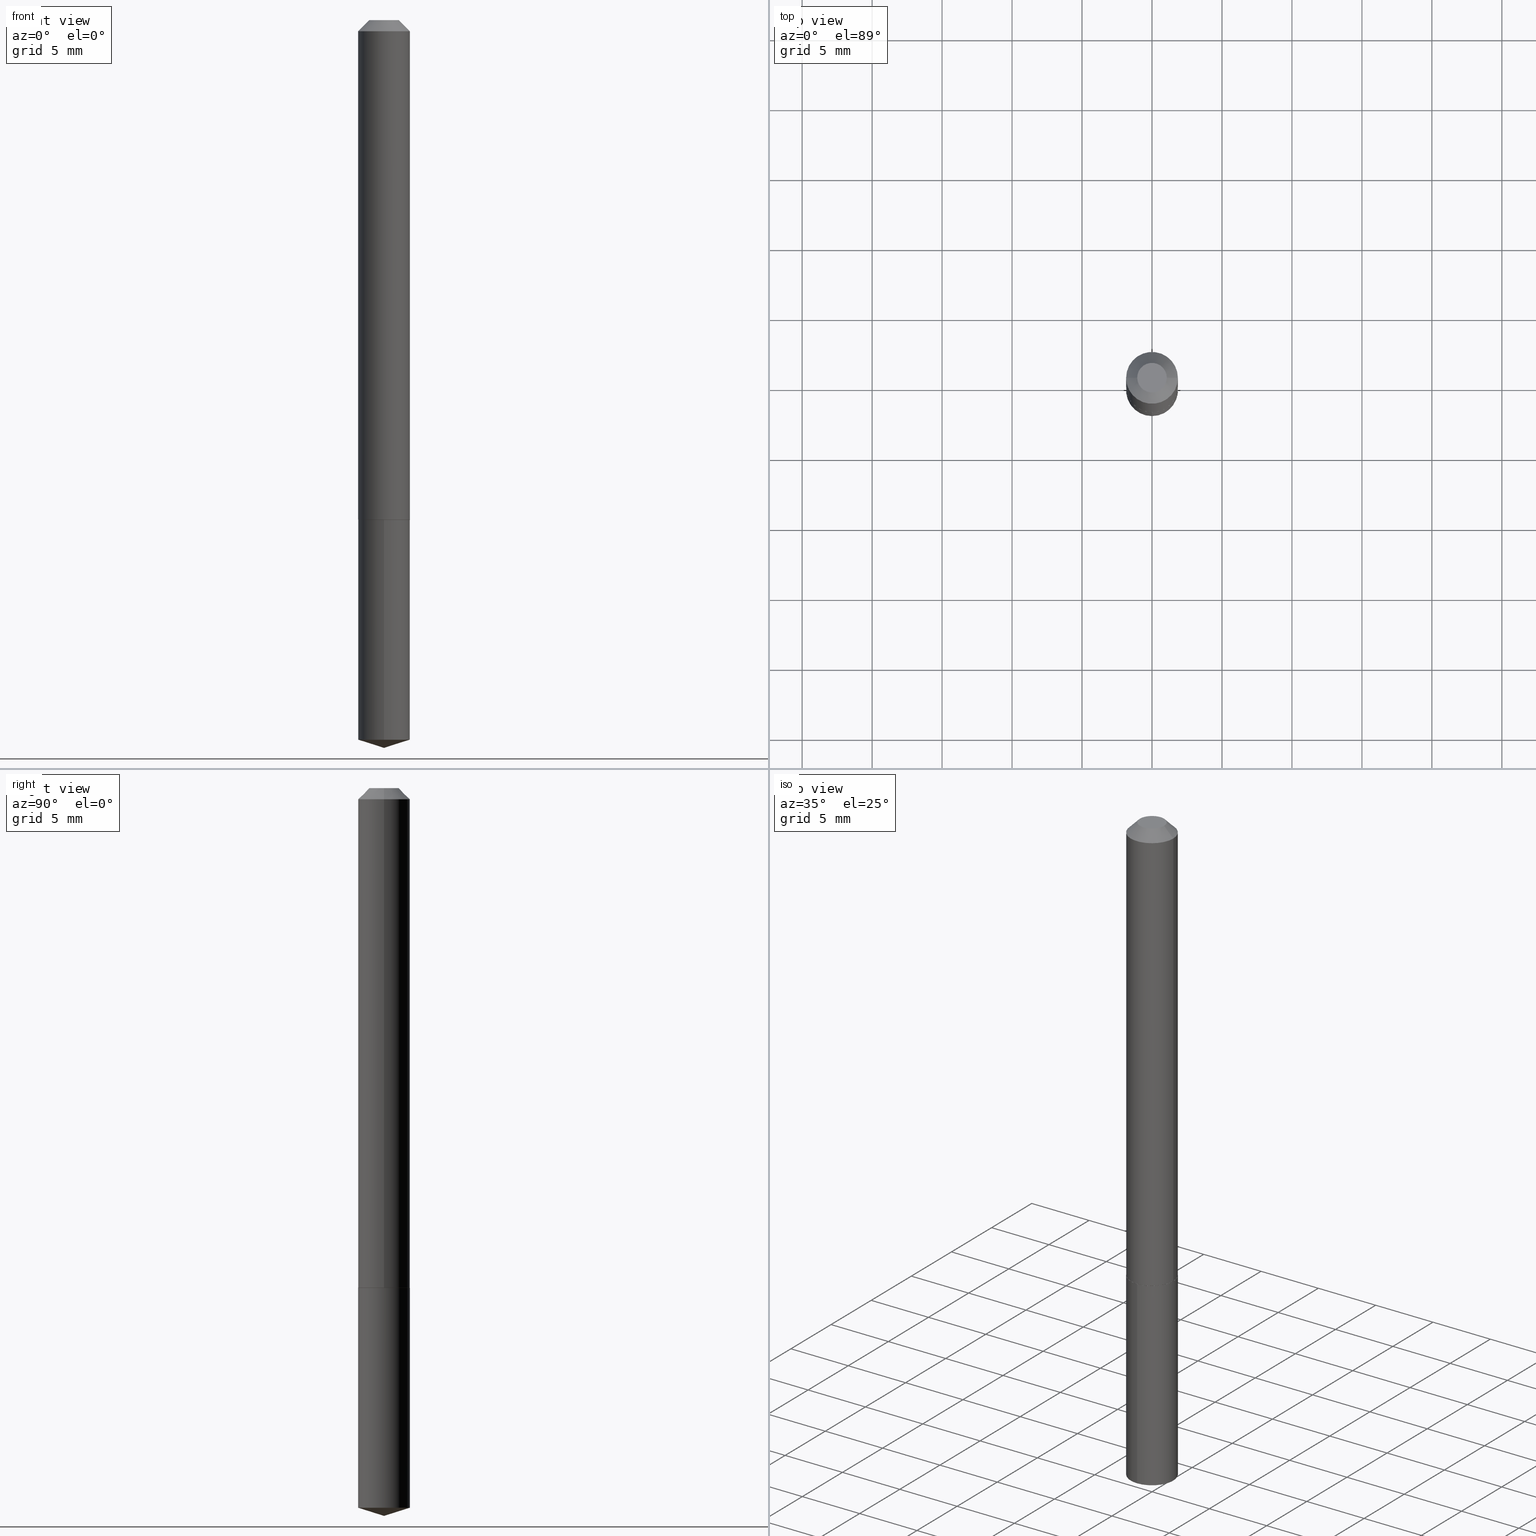
[diagram: canonical four-view strip — front | top / right | iso, engineering-drawing reading convention]
A machine part, canonical four-view strip (front | top / right | iso — engineering-drawing reading convention). The complete STEP part file that produces these views, byte-faithful:
ISO-10303-21;
HEADER;
FILE_DESCRIPTION (( 'STEP AP203' ),
    '1' );
FILE_NAME ('62085.STEP',
    '2024-04-23T05:44:07',
    ( '' ),
    ( '' ),
    'SwSTEP 2.0',
    'SolidWorks 2023',
    '' );
FILE_SCHEMA (( 'CONFIG_CONTROL_DESIGN' ));
ENDSEC;

DATA;
#1 = DIRECTION ( 'NONE',  ( -0.7071067811865453523, 2.468850131082234184E-15, -0.7071067811865496822 ) ) ;
#2 = CARTESIAN_POINT ( 'NONE',  ( -0.07284999999999999809, -1.989689653455501320E-15, -0.03125000000000020123 ) ) ;
#3 = ADVANCED_FACE ( 'NONE', ( #125 ), #66, .T. ) ;
#4 = DIRECTION ( 'NONE',  ( -2.436295008102634133E-29, 3.504618739837450053E-15, 1.000000000000000000 ) ) ;
#5 = DIRECTION ( 'NONE',  ( -2.436295008102633853E-29, 3.504618739837450053E-15, 1.000000000000000000 ) ) ;
#6 = CYLINDRICAL_SURFACE ( 'NONE', #93, 0.07284999999999999809 ) ;
#7 = DIRECTION ( 'NONE',  ( 1.000000000000000000, -6.982962677686261977E-15, 0.000000000000000000 ) ) ;
#8 = CARTESIAN_POINT ( 'NONE',  ( -0.07284999999999999809, 3.996000392305954789E-16, -0.03125000000000020123 ) ) ;
#9 = AXIS2_PLACEMENT_3D ( 'NONE', #320, #237, #55 ) ;
#10 = APPLICATION_PROTOCOL_DEFINITION ( 'international standard', 'config_control_design', 1994, #74 ) ;
#11 = CALENDAR_DATE ( 2024, 23, 4 ) ;
#12 = APPROVAL ( #279, 'UNSPECIFIED' ) ;
#13 = DIRECTION ( 'NONE',  ( 0.7071067811865453523, -7.319954787623248157E-15, -0.7071067811865496822 ) ) ;
#14 = PERSON_AND_ORGANIZATION_ROLE ( 'design_supplier' ) ;
#15 = AXIS2_PLACEMENT_3D ( 'NONE', #323, #89, #270 ) ;
#16 = AXIS2_PLACEMENT_3D ( 'NONE', #259, #233, #331 ) ;
#17 =( NAMED_UNIT ( * ) SI_UNIT ( $, .STERADIAN. ) SOLID_ANGLE_UNIT ( ) );
#18 = ORIENTED_EDGE ( 'NONE', *, *, #134, .F. ) ;
#19 = EDGE_LOOP ( 'NONE', ( #48, #121, #229, #87 ) ) ;
#20 = VECTOR ( 'NONE', #33, 39.37007874015748143 ) ;
#21 = ORIENTED_EDGE ( 'NONE', *, *, #104, .T. ) ;
#22 = PRODUCT_DEFINITION ( 'UNKNOWN', '', #227, #90 ) ;
#23 = EDGE_LOOP ( 'NONE', ( #88, #231, #348, #209 ) ) ;
#24 = DIRECTION ( 'NONE',  ( -6.982962677686265133E-15, -1.000000000000000000, 3.749962928845933734E-15 ) ) ;
#25 = VECTOR ( 'NONE', #368, 39.37007874015748143 ) ;
#26 = ADVANCED_FACE ( 'NONE', ( #29 ), #189, .T. ) ;
#27 = APPROVAL_PERSON_ORGANIZATION ( #224, #12, #141 ) ;
#28 = VERTEX_POINT ( 'NONE', #297 ) ;
#29 = FACE_OUTER_BOUND ( 'NONE', #318, .T. ) ;
#30 = CARTESIAN_POINT ( 'NONE',  ( -5.087088310694100669E-16, -0.07285000000000491083, -1.405499999999999972 ) ) ;
#31 = CARTESIAN_POINT ( 'NONE',  ( 0.000000000000000000, 0.000000000000000000, 0.000000000000000000 ) ) ;
#32 = CIRCLE ( 'NONE', #241, 0.07235000000000024745 ) ;
#33 = DIRECTION ( 'NONE',  ( -2.436295008102634133E-29, 3.504618739837450053E-15, 1.000000000000000000 ) ) ;
#34 = DIRECTION ( 'NONE',  ( -2.445468806185136597E-29, 3.491481338843145583E-15, 1.000000000000000000 ) ) ;
#35 = LINE ( 'NONE', #389, #350 ) ;
#36 = ORIENTED_EDGE ( 'NONE', *, *, #262, .T. ) ;
#37 = ADVANCED_FACE ( 'NONE', ( #232 ), #362, .T. ) ;
#38 = DIRECTION ( 'NONE',  ( -6.982962677686265922E-15, -1.000000000000000000, 3.749962928845934523E-15 ) ) ;
#39 = LINE ( 'NONE', #169, #311 ) ;
#40 = DIRECTION ( 'NONE',  ( 2.445468806185136597E-29, -3.491481338843145583E-15, -1.000000000000000000 ) ) ;
#41 = AXIS2_PLACEMENT_3D ( 'NONE', #72, #40, #126 ) ;
#42 = PERSON_AND_ORGANIZATION_ROLE ( 'classification_officer' ) ;
#43 = DATE_AND_TIME ( #108, #345 ) ;
#44 = DIRECTION ( 'NONE',  ( -2.445468806185136597E-29, 3.491481338843145583E-15, 1.000000000000000000 ) ) ;
#45 = VERTEX_POINT ( 'NONE', #59 ) ;
#46 = COORDINATED_UNIVERSAL_TIME_OFFSET ( 5, 0, .BEHIND. ) ;
#47 = MANIFOLD_SOLID_BREP ( 'Body-Move/Copy2[2]', #75 ) ;
#48 = ORIENTED_EDGE ( 'NONE', *, *, #58, .T. ) ;
#49 = DIRECTION ( 'NONE',  ( 1.000000000000000000, 0.000000000000000000, 0.000000000000000000 ) ) ;
#50 = ORIENTED_EDGE ( 'NONE', *, *, #64, .F. ) ;
#51 = EDGE_CURVE ( 'NONE', #379, #92, #228, .T. ) ;
#52 = CONICAL_SURFACE ( 'NONE', #242, 0.07285000000000015075, 0.7853981633974482790 ) ;
#53 = ORIENTED_EDGE ( 'NONE', *, *, #353, .F. ) ;
#54 = ORIENTED_EDGE ( 'NONE', *, *, #283, .T. ) ;
#55 = DIRECTION ( 'NONE',  ( 1.000000000000000000, -6.982962677686263555E-15, 0.000000000000000000 ) ) ;
#56 = CARTESIAN_POINT ( 'NONE',  ( -0.07285000000000008136, 5.176303830012335635E-16, -3.583444213250702632E-30 ) ) ;
#57 = VECTOR ( 'NONE', #4, 39.37007874015748143 ) ;
#58 = EDGE_CURVE ( 'NONE', #386, #367, #329, .T. ) ;
#59 = CARTESIAN_POINT ( 'NONE',  ( 0.07285000000000015075, -5.414240112144066527E-15, -1.405000000000000471 ) ) ;
#60 = EDGE_CURVE ( 'NONE', #260, #175, #148, .T. ) ;
#61 = DIRECTION ( 'NONE',  ( 1.000000000000000000, -6.982962677686265922E-15, 0.000000000000000000 ) ) ;
#62 = CARTESIAN_POINT ( 'NONE',  ( 7.642090019328600035E-31, -1.091087918388489897E-16, -0.03125000000000020123 ) ) ;
#63 = CARTESIAN_POINT ( 'NONE',  ( 3.437106407093210258E-29, -4.907277021744042169E-15, -1.405500000000000416 ) ) ;
#64 = EDGE_CURVE ( 'NONE', #384, #258, #124, .T. ) ;
#65 = DIRECTION ( 'NONE',  ( -1.000000000000000000, 6.982962677686265922E-15, 0.000000000000000000 ) ) ;
#66 = CONICAL_SURFACE ( 'NONE', #177, 0.07284999999999999809, 0.7853981633974452814 ) ;
#67 = AXIS2_PLACEMENT_3D ( 'NONE', #235, #299, #157 ) ;
#68 = FACE_OUTER_BOUND ( 'NONE', #313, .T. ) ;
#69 = APPROVAL ( #197, 'UNSPECIFIED' ) ;
#70 = DIRECTION ( 'NONE',  ( -2.436295008102633853E-29, 3.504618739837450053E-15, 1.000000000000000000 ) ) ;
#71 = DIRECTION ( 'NONE',  ( -6.982962677686267499E-15, -1.000000000000000000, 3.500519750498818422E-15 ) ) ;
#72 = CARTESIAN_POINT ( 'NONE',  ( 7.642090019328600035E-31, -1.091087918388489897E-16, -0.03125000000000020123 ) ) ;
#73 = FACE_OUTER_BOUND ( 'NONE', #19, .T. ) ;
#74 = APPLICATION_CONTEXT ( 'configuration controlled 3d designs of mechanical parts and assemblies' ) ;
#75 = CLOSED_SHELL ( 'NONE', ( #385, #37, #230, #295, #127, #146, #3, #218 ) ) ;
#76 = CONICAL_SURFACE ( 'NONE', #9, 0.07285000000000015075, 0.7853981633974482790 ) ;
#77 = COORDINATED_UNIVERSAL_TIME_OFFSET ( 5, 0, .BEHIND. ) ;
#78 = UNCERTAINTY_MEASURE_WITH_UNIT (LENGTH_MEASURE( 1.000000000000000082E-05 ), #246, 'distance_accuracy_value', 'NONE');
#79 = CARTESIAN_POINT ( 'NONE',  ( -9.091664938946063653E-28, 1.308209248745341552E-13, 37.32287874015748486 ) ) ;
#80 = ORIENTED_EDGE ( 'NONE', *, *, #317, .F. ) ;
#81 = CARTESIAN_POINT ( 'NONE',  ( 0.000000000000000000, 0.000000000000000000, 0.000000000000000000 ) ) ;
#82 = APPROVAL_DATE_TIME ( #343, #12 ) ;
#83 = CIRCLE ( 'NONE', #16, 0.07285000000000015075 ) ;
#84 = PERSON_AND_ORGANIZATION ( #119, #216 ) ;
#85 = EDGE_LOOP ( 'NONE', ( #18, #111, #54, #153 ) ) ;
#86 = VECTOR ( 'NONE', #195, 39.37007874015748854 ) ;
#87 = ORIENTED_EDGE ( 'NONE', *, *, #265, .F. ) ;
#88 = ORIENTED_EDGE ( 'NONE', *, *, #200, .F. ) ;
#89 = DIRECTION ( 'NONE',  ( -2.436295008102633853E-29, 3.504618739837450053E-15, 1.000000000000000000 ) ) ;
#90 = DESIGN_CONTEXT ( 'detailed design', #74, 'design' ) ;
#91 = CLOSED_SHELL ( 'NONE', ( #319, #188, #26, #94, #332 ) ) ;
#92 = VERTEX_POINT ( 'NONE', #2 ) ;
#93 = AXIS2_PLACEMENT_3D ( 'NONE', #139, #328, #135 ) ;
#94 = ADVANCED_FACE ( 'NONE', ( #180 ), #131, .T. ) ;
#95 = CARTESIAN_POINT ( 'NONE',  ( 0.07235000000000024745, -5.412494371474645024E-15, -1.405500000000000416 ) ) ;
#96 = CARTESIAN_POINT ( 'NONE',  ( 4.944516394747793359E-29, -7.075691468181160622E-15, -2.024230483230165856 ) ) ;
#97 = PLANE ( 'NONE',  #154 ) ;
#98 = EDGE_LOOP ( 'NONE', ( #315, #256 ) ) ;
#99 = DIRECTION ( 'NONE',  ( -2.445468806185136597E-29, 3.491481338843145583E-15, 1.000000000000000000 ) ) ;
#100 = FACE_OUTER_BOUND ( 'NONE', #316, .T. ) ;
#101 = VECTOR ( 'NONE', #13, 39.37007874015748143 ) ;
#102 = CARTESIAN_POINT ( 'NONE',  ( -0.07235000000000024745, -4.390550125247498303E-15, -1.405500000000000416 ) ) ;
#103 = LOCAL_TIME ( 1, 44, 7.000000000000000000, #46 ) ;
#104 = EDGE_CURVE ( 'NONE', #258, #349, #357, .T. ) ;
#105 = LINE ( 'NONE', #280, #101 ) ;
#106 = CARTESIAN_POINT ( 'NONE',  ( 4.987583140587712367E-29, -7.174655484195229090E-15, -2.047200000000000131 ) ) ;
#107 = DIRECTION ( 'NONE',  ( 2.438088387897960049E-29, -3.491481338843145188E-15, -1.000000000000000000 ) ) ;
#108 = CALENDAR_DATE ( 2024, 23, 4 ) ;
#109 = PERSON_AND_ORGANIZATION_ROLE ( 'design_owner' ) ;
#110 = AXIS2_PLACEMENT_3D ( 'NONE', #63, #164, #238 ) ;
#111 = ORIENTED_EDGE ( 'NONE', *, *, #271, .T. ) ;
#112 = EDGE_CURVE ( 'NONE', #28, #178, #137, .T. ) ;
#113 = PERSON_AND_ORGANIZATION ( #119, #216 ) ;
#114 = DATE_AND_TIME ( #378, #173 ) ;
#115 = EDGE_CURVE ( 'NONE', #349, #258, #306, .T. ) ;
#116 = ORIENTED_EDGE ( 'NONE', *, *, #115, .F. ) ;
#117 = MECHANICAL_CONTEXT ( 'NONE', #276, 'mechanical' ) ;
#118 = AXIS2_PLACEMENT_3D ( 'NONE', #161, #207, #269 ) ;
#119 = PERSON ( 'UNSPECIFIED', 'UNSPECIFIED', 'UNSPECIFIED', ('UNSPECIFIED'), ('UNSPECIFIED'), ('UNSPECIFIED') ) ;
#120 = CC_DESIGN_PERSON_AND_ORGANIZATION_ASSIGNMENT ( #339, #166, ( #22 ) ) ;
#121 = ORIENTED_EDGE ( 'NONE', *, *, #200, .T. ) ;
#122 = AXIS2_PLACEMENT_3D ( 'NONE', #158, #214, #266 ) ;
#123 = ORIENTED_EDGE ( 'NONE', *, *, #134, .T. ) ;
#124 = LINE ( 'NONE', #296, #275 ) ;
#125 = FACE_OUTER_BOUND ( 'NONE', #203, .T. ) ;
#126 = DIRECTION ( 'NONE',  ( -1.000000000000000000, 6.982962677686265922E-15, 0.000000000000000000 ) ) ;
#127 = ADVANCED_FACE ( 'NONE', ( #325 ), #76, .T. ) ;
#128 = DIRECTION ( 'NONE',  ( 6.776566513254236838E-15, 0.9537169507482260444, 0.3007057995042760612 ) ) ;
#129 = VECTOR ( 'NONE', #1, 39.37007874015748143 ) ;
#130 = DIRECTION ( 'NONE',  ( 1.000000000000000000, -6.982962677686266711E-15, 4.875702794930965238E-29 ) ) ;
#131 = CYLINDRICAL_SURFACE ( 'NONE', #366, 0.07284999999999999809 ) ;
#132 = CARTESIAN_POINT ( 'NONE',  ( -0.07285000000000015075, -4.387900898073387102E-15, -1.405000000000000471 ) ) ;
#133 = DIRECTION ( 'NONE',  ( 2.445468806185136597E-29, -3.491481338843145583E-15, -1.000000000000000000 ) ) ;
#134 = EDGE_CURVE ( 'NONE', #381, #92, #155, .T. ) ;
#135 = DIRECTION ( 'NONE',  ( -6.982962677686265922E-15, -1.000000000000000000, 3.749962928845934523E-15 ) ) ;
#136 = FACE_OUTER_BOUND ( 'NONE', #85, .T. ) ;
#137 = CIRCLE ( 'NONE', #118, 0.07284999999999999809 ) ;
#138 = APPROVAL_PERSON_ORGANIZATION ( #309, #210, #222 ) ;
#139 = CARTESIAN_POINT ( 'NONE',  ( 3.437106407093210258E-29, -4.907277021744042169E-15, -1.405500000000000416 ) ) ;
#140 = DATE_AND_TIME ( #277, #351 ) ;
#141 = APPROVAL_ROLE ( '' ) ;
#142 =( GEOMETRIC_REPRESENTATION_CONTEXT ( 3 ) GLOBAL_UNCERTAINTY_ASSIGNED_CONTEXT ( ( #78 ) ) GLOBAL_UNIT_ASSIGNED_CONTEXT ( ( #246, #374, #17 ) ) REPRESENTATION_CONTEXT ( 'NONE', 'WORKASPACE' ) );
#143 = DIRECTION ( 'NONE',  ( 1.000000000000000000, -6.982962677686266711E-15, 4.876176775795935793E-29 ) ) ;
#144 = PERSON_AND_ORGANIZATION ( #119, #216 ) ;
#145 = DIRECTION ( 'NONE',  ( 1.000000000000000000, -6.982962677686263555E-15, 0.000000000000000000 ) ) ;
#146 = ADVANCED_FACE ( 'NONE', ( #136 ), #371, .T. ) ;
#147 = ORIENTED_EDGE ( 'NONE', *, *, #194, .F. ) ;
#148 = CIRCLE ( 'NONE', #267, 0.04160000000000000503 ) ;
#149 = CC_DESIGN_APPROVAL ( #210, ( #22 ) ) ;
#150 = ORIENTED_EDGE ( 'NONE', *, *, #262, .F. ) ;
#151 = ORIENTED_EDGE ( 'NONE', *, *, #104, .F. ) ;
#152 = DIRECTION ( 'NONE',  ( -2.445468806185136597E-29, 3.491481338843145583E-15, 1.000000000000000000 ) ) ;
#153 = ORIENTED_EDGE ( 'NONE', *, *, #301, .F. ) ;
#154 = AXIS2_PLACEMENT_3D ( 'NONE', #217, #192, #302 ) ;
#155 = LINE ( 'NONE', #56, #337 ) ;
#156 = CARTESIAN_POINT ( 'NONE',  ( 4.598569980743773058E-46, -6.565539185174804648E-32, -1.880445160090761431E-17 ) ) ;
#157 = DIRECTION ( 'NONE',  ( 1.000000000000000000, -6.982962677686261977E-15, 0.000000000000000000 ) ) ;
#158 = CARTESIAN_POINT ( 'NONE',  ( 7.642090019328600035E-31, -1.091087918388489897E-16, -0.03125000000000020123 ) ) ;
#159 = AXIS2_PLACEMENT_3D ( 'NONE', #96, #212, #321 ) ;
#160 = CARTESIAN_POINT ( 'NONE',  ( 3.437106407093210258E-29, -4.907277021744042169E-15, -1.405500000000000416 ) ) ;
#161 = CARTESIAN_POINT ( 'NONE',  ( 3.437106407093210258E-29, -4.907277021744042169E-15, -1.405500000000000416 ) ) ;
#162 = EDGE_CURVE ( 'NONE', #260, #379, #105, .T. ) ;
#163 = DIRECTION ( 'NONE',  ( 1.000000000000000000, -6.982962677686263555E-15, 0.000000000000000000 ) ) ;
#164 = DIRECTION ( 'NONE',  ( 2.436295008102633573E-29, -3.504618739837450053E-15, -1.000000000000000000 ) ) ;
#165 = AXIS2_PLACEMENT_3D ( 'NONE', #160, #70, #38 ) ;
#166 = PERSON_AND_ORGANIZATION_ROLE ( 'creator' ) ;
#167 = DATE_TIME_ROLE ( 'classification_date' ) ;
#168 = CARTESIAN_POINT ( 'NONE',  ( 0.000000000000000000, 0.000000000000000000, 0.000000000000000000 ) ) ;
#169 = CARTESIAN_POINT ( 'NONE',  ( -0.07285000000000015075, -4.387900898073387102E-15, -1.405000000000000471 ) ) ;
#170 = ORIENTED_EDGE ( 'NONE', *, *, #58, .F. ) ;
#171 = APPROVAL_DATE_TIME ( #43, #69 ) ;
#172 = AXIS2_PLACEMENT_3D ( 'NONE', #81, #346, #49 ) ;
#173 = LOCAL_TIME ( 1, 44, 7.000000000000000000, #250 ) ;
#174 = ORIENTED_EDGE ( 'NONE', *, *, #310, .T. ) ;
#175 = VERTEX_POINT ( 'NONE', #247 ) ;
#176 = ORIENTED_EDGE ( 'NONE', *, *, #162, .F. ) ;
#177 = AXIS2_PLACEMENT_3D ( 'NONE', #62, #133, #65 ) ;
#178 = VERTEX_POINT ( 'NONE', #273 ) ;
#179 = MANIFOLD_SOLID_BREP ( 'Body-Move/Copy2[1]', #91 ) ;
#180 = FACE_OUTER_BOUND ( 'NONE', #204, .T. ) ;
#181 = AXIS2_PLACEMENT_3D ( 'NONE', #361, #99, #163 ) ;
#182 = LOCAL_TIME ( 1, 44, 7.000000000000000000, #249 ) ;
#183 = DIRECTION ( 'NONE',  ( -2.445468806185136877E-29, 3.491481338843145188E-15, 1.000000000000000000 ) ) ;
#184 = DIRECTION ( 'NONE',  ( 1.000000000000000000, -6.982962677686266711E-15, 4.875702794930965238E-29 ) ) ;
#185 = CARTESIAN_POINT ( 'NONE',  ( 5.176303830012672873E-16, 0.07284999999999508535, -1.405500000000000638 ) ) ;
#186 = EDGE_LOOP ( 'NONE', ( #352, #206 ) ) ;
#187 = CARTESIAN_POINT ( 'NONE',  ( -5.087088310693950785E-16, -0.07285000000000708964, -2.024230483230165412 ) ) ;
#188 = ADVANCED_FACE ( 'NONE', ( #100 ), #284, .T. ) ;
#189 = CONICAL_SURFACE ( 'NONE', #15, 124.8659371009109975, 1.265363707695882356 ) ;
#190 = DIRECTION ( 'NONE',  ( 1.000000000000000000, -6.982962677686266711E-15, 4.876176775795935793E-29 ) ) ;
#191 = CARTESIAN_POINT ( 'NONE',  ( 7.642090019328600035E-31, -1.091087918388489897E-16, -0.03125000000000020123 ) ) ;
#192 = DIRECTION ( 'NONE',  ( -2.438088387897960049E-29, 3.491481338843145188E-15, 1.000000000000000000 ) ) ;
#193 = FACE_OUTER_BOUND ( 'NONE', #186, .T. ) ;
#194 = EDGE_CURVE ( 'NONE', #367, #386, #32, .T. ) ;
#195 = DIRECTION ( 'NONE',  ( 0.7071067811865474617, -2.468850131082256666E-15, 0.7071067811865474617 ) ) ;
#196 = PERSON_AND_ORGANIZATION ( #119, #216 ) ;
#197 = APPROVAL_STATUS ( 'not_yet_approved' ) ;
#198 = SHAPE_DEFINITION_REPRESENTATION ( #253, #288 ) ;
#199 = AXIS2_PLACEMENT_3D ( 'NONE', #191, #215, #61 ) ;
#200 = EDGE_CURVE ( 'NONE', #367, #381, #39, .T. ) ;
#201 = ORIENTED_EDGE ( 'NONE', *, *, #353, .T. ) ;
#202 = CALENDAR_DATE ( 2024, 23, 4 ) ;
#203 = EDGE_LOOP ( 'NONE', ( #176, #286, #341, #291 ) ) ;
#204 = EDGE_LOOP ( 'NONE', ( #53, #21, #174, #390 ) ) ;
#205 = APPROVAL_PERSON_ORGANIZATION ( #113, #69, #308 ) ;
#206 = ORIENTED_EDGE ( 'NONE', *, *, #60, .T. ) ;
#207 = DIRECTION ( 'NONE',  ( -2.436295008102633853E-29, 3.504618739837450053E-15, 1.000000000000000000 ) ) ;
#208 = CONICAL_SURFACE ( 'NONE', #41, 0.07284999999999999809, 0.7853981633974452814 ) ;
#209 = ORIENTED_EDGE ( 'NONE', *, *, #271, .F. ) ;
#210 = APPROVAL ( #223, 'UNSPECIFIED' ) ;
#211 = CARTESIAN_POINT ( 'NONE',  ( 4.598569980743773058E-46, -6.565539185174804648E-32, -1.880445160090761431E-17 ) ) ;
#212 = DIRECTION ( 'NONE',  ( -2.436295008102633853E-29, 3.504618739837450053E-15, 1.000000000000000000 ) ) ;
#213 = FACE_OUTER_BOUND ( 'NONE', #239, .T. ) ;
#214 = DIRECTION ( 'NONE',  ( -2.445468806185136597E-29, 3.491481338843145583E-15, 1.000000000000000000 ) ) ;
#215 = DIRECTION ( 'NONE',  ( -2.445468806185136597E-29, 3.491481338843145583E-15, 1.000000000000000000 ) ) ;
#216 = ORGANIZATION ( 'UNSPECIFIED', 'UNSPECIFIED', '' ) ;
#217 = CARTESIAN_POINT ( 'NONE',  ( 3.437106407093210258E-29, -4.907277021744042169E-15, -1.405500000000000416 ) ) ;
#218 = ADVANCED_FACE ( 'NONE', ( #193 ), #369, .F. ) ;
#219 = FACE_OUTER_BOUND ( 'NONE', #388, .T. ) ;
#220 = PERSON_AND_ORGANIZATION_ROLE ( 'creator' ) ;
#221 = AXIS2_PLACEMENT_3D ( 'NONE', #360, #5, #24 ) ;
#222 = APPROVAL_ROLE ( '' ) ;
#223 = APPROVAL_STATUS ( 'not_yet_approved' ) ;
#224 = PERSON_AND_ORGANIZATION ( #119, #216 ) ;
#225 = CARTESIAN_POINT ( 'NONE',  ( 5.176303830012823743E-16, 0.07284999999999293430, -2.024230483230165856 ) ) ;
#226 = CIRCLE ( 'NONE', #165, 0.07284999999999999809 ) ;
#227 = PRODUCT_DEFINITION_FORMATION_WITH_SPECIFIED_SOURCE ( 'ANY', '', #342, .NOT_KNOWN. ) ;
#228 = CIRCLE ( 'NONE', #122, 0.07284999999999999809 ) ;
#229 = ORIENTED_EDGE ( 'NONE', *, *, #355, .F. ) ;
#230 = ADVANCED_FACE ( 'NONE', ( #73 ), #52, .T. ) ;
#231 = ORIENTED_EDGE ( 'NONE', *, *, #194, .T. ) ;
#232 = FACE_OUTER_BOUND ( 'NONE', #356, .T. ) ;
#233 = DIRECTION ( 'NONE',  ( -2.445468806185136597E-29, 3.491481338843145583E-15, 1.000000000000000000 ) ) ;
#234 = AXIS2_PLACEMENT_3D ( 'NONE', #211, #324, #130 ) ;
#235 = CARTESIAN_POINT ( 'NONE',  ( 3.437106407093210258E-29, -4.907277021744042169E-15, -1.405500000000000416 ) ) ;
#236 = LENGTH_MEASURE_WITH_UNIT ( LENGTH_MEASURE( 0.02539999999999999897 ), #298 );
#237 = DIRECTION ( 'NONE',  ( -2.445468806185136597E-29, 3.491481338843145583E-15, 1.000000000000000000 ) ) ;
#238 = DIRECTION ( 'NONE',  ( 6.982962677686265922E-15, 1.000000000000000000, -3.504618739837450053E-15 ) ) ;
#239 = EDGE_LOOP ( 'NONE', ( #252, #201, #261, #327 ) ) ;
#240 = DIRECTION ( 'NONE',  ( -6.659769872151611578E-15, -0.9537169507482238240, 0.3007057995042827225 ) ) ;
#241 = AXIS2_PLACEMENT_3D ( 'NONE', #330, #44, #7 ) ;
#242 = AXIS2_PLACEMENT_3D ( 'NONE', #307, #152, #145 ) ;
#243 = LINE ( 'NONE', #185, #57 ) ;
#244 = DIRECTION ( 'NONE',  ( -0.7071067811865474617, 7.493145998870352582E-15, 0.7071067811865474617 ) ) ;
#245 = DATE_TIME_ROLE ( 'creation_date' ) ;
#246 =( CONVERSION_BASED_UNIT ( 'INCH', #236 ) LENGTH_UNIT ( ) NAMED_UNIT ( #373 ) );
#247 = CARTESIAN_POINT ( 'NONE',  ( -0.04160000000000000503, 3.450456433111720626E-16, -1.880445160090983607E-17 ) ) ;
#248 = AXIS2_PLACEMENT_3D ( 'NONE', #303, #107, #335 ) ;
#249 = COORDINATED_UNIVERSAL_TIME_OFFSET ( 5, 0, .BEHIND. ) ;
#250 = COORDINATED_UNIVERSAL_TIME_OFFSET ( 5, 0, .BEHIND. ) ;
#251 = CARTESIAN_POINT ( 'NONE',  ( 0.04160000000000000503, -4.471463938419004583E-16, -1.880445160090503511E-17 ) ) ;
#252 = ORIENTED_EDGE ( 'NONE', *, *, #115, .T. ) ;
#253 = PRODUCT_DEFINITION_SHAPE ( 'NONE', 'NONE',  #22 ) ;
#254 = ORIENTED_EDGE ( 'NONE', *, *, #162, .T. ) ;
#255 = CIRCLE ( 'NONE', #234, 0.04160000000000000503 ) ;
#256 = ORIENTED_EDGE ( 'NONE', *, *, #382, .T. ) ;
#257 = PRODUCT_RELATED_PRODUCT_CATEGORY ( 'detail', '', ( #342 ) ) ;
#258 = VERTEX_POINT ( 'NONE', #225 ) ;
#259 = CARTESIAN_POINT ( 'NONE',  ( 3.435883672690118017E-29, -4.905531281074621455E-15, -1.405000000000000471 ) ) ;
#260 = VERTEX_POINT ( 'NONE', #251 ) ;
#261 = ORIENTED_EDGE ( 'NONE', *, *, #112, .F. ) ;
#262 = EDGE_CURVE ( 'NONE', #384, #349, #35, .T. ) ;
#263 = DIRECTION ( 'NONE',  ( -2.436295008102633853E-29, 3.504618739837450053E-15, 1.000000000000000000 ) ) ;
#264 = CC_DESIGN_PERSON_AND_ORGANIZATION_ASSIGNMENT ( #285, #14, ( #227 ) ) ;
#265 = EDGE_CURVE ( 'NONE', #386, #45, #274, .T. ) ;
#266 = DIRECTION ( 'NONE',  ( 1.000000000000000000, -6.982962677686265922E-15, 0.000000000000000000 ) ) ;
#267 = AXIS2_PLACEMENT_3D ( 'NONE', #156, #34, #184 ) ;
#268 = CC_DESIGN_APPROVAL ( #69, ( #227 ) ) ;
#269 = DIRECTION ( 'NONE',  ( -6.982962677686265922E-15, -1.000000000000000000, 3.749962928845934523E-15 ) ) ;
#270 = DIRECTION ( 'NONE',  ( -6.982962677686267499E-15, -1.000000000000000000, 3.500519750498818422E-15 ) ) ;
#271 = EDGE_CURVE ( 'NONE', #381, #45, #344, .T. ) ;
#272 = LINE ( 'NONE', #8, #129 ) ;
#273 = CARTESIAN_POINT ( 'NONE',  ( 5.176303830012825715E-16, 0.07284999999999508535, -1.405500000000000638 ) ) ;
#274 = LINE ( 'NONE', #300, #86 ) ;
#275 = VECTOR ( 'NONE', #128, 39.37007874015748854 ) ;
#276 = APPLICATION_CONTEXT ( 'configuration controlled 3d designs of mechanical parts and assemblies' ) ;
#277 = CALENDAR_DATE ( 2024, 23, 4 ) ;
#278 = CC_DESIGN_PERSON_AND_ORGANIZATION_ASSIGNMENT ( #144, #42, ( #290 ) ) ;
#279 = APPROVAL_STATUS ( 'not_yet_approved' ) ;
#280 = CARTESIAN_POINT ( 'NONE',  ( 0.07284999999999999809, -6.088960709765050907E-16, -0.03125000000000020123 ) ) ;
#281 = DATE_AND_TIME ( #202, #103 ) ;
#282 = AXIS2_PLACEMENT_3D ( 'NONE', #31, #364, #190 ) ;
#283 = EDGE_CURVE ( 'NONE', #45, #379, #365, .T. ) ;
#284 = CONICAL_SURFACE ( 'NONE', #375, 124.8659371009109975, 1.265363707695882356 ) ;
#285 = PERSON_AND_ORGANIZATION ( #119, #216 ) ;
#286 = ORIENTED_EDGE ( 'NONE', *, *, #387, .F. ) ;
#287 = ORIENTED_EDGE ( 'NONE', *, *, #51, .F. ) ;
#288 = ADVANCED_BREP_SHAPE_REPRESENTATION ( '62085', ( #179, #47, #172 ), #142 ) ;
#289 = CIRCLE ( 'NONE', #199, 0.07284999999999999809 ) ;
#290 = SECURITY_CLASSIFICATION ( '', '', #377 ) ;
#291 = ORIENTED_EDGE ( 'NONE', *, *, #301, .T. ) ;
#292 = CARTESIAN_POINT ( 'NONE',  ( 3.437106407093210258E-29, -4.907277021744042169E-15, -1.405500000000000416 ) ) ;
#293 = ORIENTED_EDGE ( 'NONE', *, *, #355, .T. ) ;
#294 = CC_DESIGN_DATE_AND_TIME_ASSIGNMENT ( #140, #245, ( #22 ) ) ;
#295 = ADVANCED_FACE ( 'NONE', ( #68 ), #97, .F. ) ;
#296 = CARTESIAN_POINT ( 'NONE',  ( 5.013596813339887321E-29, -7.137726250000239033E-15, -2.047200000000000131 ) ) ;
#297 = CARTESIAN_POINT ( 'NONE',  ( -5.087088310694100669E-16, -0.07285000000000491083, -1.405499999999999972 ) ) ;
#298 =( LENGTH_UNIT ( ) NAMED_UNIT ( * ) SI_UNIT ( $, .METRE. ) );
#299 = DIRECTION ( 'NONE',  ( -2.445468806185136597E-29, 3.491481338843145583E-15, 1.000000000000000000 ) ) ;
#300 = CARTESIAN_POINT ( 'NONE',  ( 0.07285000000000015075, -5.414240112144066527E-15, -1.405000000000000471 ) ) ;
#301 = EDGE_CURVE ( 'NONE', #92, #379, #289, .T. ) ;
#302 = DIRECTION ( 'NONE',  ( 1.000000000000000000, -6.982962677686265922E-15, 4.876176775795935793E-29 ) ) ;
#303 = CARTESIAN_POINT ( 'NONE',  ( 2.299284990371886529E-46, -3.282769592587402324E-32, -9.402225800453807156E-18 ) ) ;
#304 = CC_DESIGN_DATE_AND_TIME_ASSIGNMENT ( #114, #167, ( #290 ) ) ;
#305 = CARTESIAN_POINT ( 'NONE',  ( 0.07285000000000008136, -5.087088310694450726E-16, 3.552294781167343025E-30 ) ) ;
#306 = CIRCLE ( 'NONE', #159, 0.07285000000000001197 ) ;
#307 = CARTESIAN_POINT ( 'NONE',  ( 3.435883672690118017E-29, -4.905531281074621455E-15, -1.405000000000000471 ) ) ;
#308 = APPROVAL_ROLE ( '' ) ;
#309 = PERSON_AND_ORGANIZATION ( #119, #216 ) ;
#310 = EDGE_CURVE ( 'NONE', #349, #28, #358, .T. ) ;
#311 = VECTOR ( 'NONE', #244, 39.37007874015748854 ) ;
#312 = ORIENTED_EDGE ( 'NONE', *, *, #64, .T. ) ;
#313 = EDGE_LOOP ( 'NONE', ( #170, #147 ) ) ;
#314 = APPROVAL_DATE_TIME ( #281, #210 ) ;
#315 = ORIENTED_EDGE ( 'NONE', *, *, #112, .T. ) ;
#316 = EDGE_LOOP ( 'NONE', ( #150, #312, #116 ) ) ;
#317 = EDGE_CURVE ( 'NONE', #175, #92, #272, .T. ) ;
#318 = EDGE_LOOP ( 'NONE', ( #50, #36, #151 ) ) ;
#319 = ADVANCED_FACE ( 'NONE', ( #213 ), #6, .T. ) ;
#320 = CARTESIAN_POINT ( 'NONE',  ( 3.435883672690118017E-29, -4.905531281074621455E-15, -1.405000000000000471 ) ) ;
#321 = DIRECTION ( 'NONE',  ( -6.982962677686265133E-15, -1.000000000000000000, 3.749962928845933734E-15 ) ) ;
#322 = AXIS2_PLACEMENT_3D ( 'NONE', #168, #340, #143 ) ;
#323 = CARTESIAN_POINT ( 'NONE',  ( -9.091664938946063653E-28, 1.308209248745341552E-13, 37.32287874015748486 ) ) ;
#324 = DIRECTION ( 'NONE',  ( -2.445468806185136597E-29, 3.491481338843145583E-15, 1.000000000000000000 ) ) ;
#325 = FACE_OUTER_BOUND ( 'NONE', #23, .T. ) ;
#326 = PLANE ( 'NONE',  #110 ) ;
#327 = ORIENTED_EDGE ( 'NONE', *, *, #310, .F. ) ;
#328 = DIRECTION ( 'NONE',  ( -2.436295008102633853E-29, 3.504618739837450053E-15, 1.000000000000000000 ) ) ;
#329 = CIRCLE ( 'NONE', #67, 0.07235000000000024745 ) ;
#330 = CARTESIAN_POINT ( 'NONE',  ( 3.437106407093210258E-29, -4.907277021744042169E-15, -1.405500000000000416 ) ) ;
#331 = DIRECTION ( 'NONE',  ( 1.000000000000000000, -6.982962677686263555E-15, 0.000000000000000000 ) ) ;
#332 = ADVANCED_FACE ( 'NONE', ( #363 ), #326, .F. ) ;
#333 = DIRECTION ( 'NONE',  ( -2.436295008102633853E-29, 3.504618739837450053E-15, 1.000000000000000000 ) ) ;
#334 = CARTESIAN_POINT ( 'NONE',  ( 0.07284999999999999809, -6.178176229082934830E-16, -0.03125000000000020123 ) ) ;
#335 = DIRECTION ( 'NONE',  ( -1.000000000000000000, 6.982962677686265922E-15, -4.876176775795935793E-29 ) ) ;
#336 = CC_DESIGN_PERSON_AND_ORGANIZATION_ASSIGNMENT ( #196, #220, ( #227 ) ) ;
#337 = VECTOR ( 'NONE', #183, 39.37007874015748143 ) ;
#338 = CC_DESIGN_SECURITY_CLASSIFICATION ( #290, ( #227 ) ) ;
#339 = PERSON_AND_ORGANIZATION ( #119, #216 ) ;
#340 = DIRECTION ( 'NONE',  ( -2.445468806185136597E-29, 3.491481338843145583E-15, 1.000000000000000000 ) ) ;
#341 = ORIENTED_EDGE ( 'NONE', *, *, #317, .T. ) ;
#342 = PRODUCT ( '62085', '62085', '', ( #117 ) ) ;
#343 = DATE_AND_TIME ( #11, #182 ) ;
#344 = CIRCLE ( 'NONE', #181, 0.07285000000000015075 ) ;
#345 = LOCAL_TIME ( 1, 44, 7.000000000000000000, #370 ) ;
#346 = DIRECTION ( 'NONE',  ( 0.000000000000000000, 0.000000000000000000, 1.000000000000000000 ) ) ;
#347 = ORIENTED_EDGE ( 'NONE', *, *, #51, .T. ) ;
#348 = ORIENTED_EDGE ( 'NONE', *, *, #265, .T. ) ;
#349 = VERTEX_POINT ( 'NONE', #187 ) ;
#350 = VECTOR ( 'NONE', #240, 39.37007874015748143 ) ;
#351 = LOCAL_TIME ( 1, 44, 7.000000000000000000, #77 ) ;
#352 = ORIENTED_EDGE ( 'NONE', *, *, #387, .T. ) ;
#353 = EDGE_CURVE ( 'NONE', #258, #178, #243, .T. ) ;
#354 = DIRECTION ( 'NONE',  ( -6.982962677686265922E-15, -1.000000000000000000, 3.749962928845934523E-15 ) ) ;
#355 = EDGE_CURVE ( 'NONE', #45, #381, #83, .T. ) ;
#356 = EDGE_LOOP ( 'NONE', ( #293, #123, #287, #376 ) ) ;
#357 = CIRCLE ( 'NONE', #221, 0.07285000000000001197 ) ;
#358 = LINE ( 'NONE', #30, #20 ) ;
#359 = CC_DESIGN_APPROVAL ( #12, ( #290 ) ) ;
#360 = CARTESIAN_POINT ( 'NONE',  ( 4.944516394747793359E-29, -7.075691468181160622E-15, -2.024230483230165856 ) ) ;
#361 = CARTESIAN_POINT ( 'NONE',  ( 3.435883672690118017E-29, -4.905531281074621455E-15, -1.405000000000000471 ) ) ;
#362 = CYLINDRICAL_SURFACE ( 'NONE', #282, 0.07285000000000008136 ) ;
#363 = FACE_OUTER_BOUND ( 'NONE', #98, .T. ) ;
#364 = DIRECTION ( 'NONE',  ( -2.445468806185136597E-29, 3.491481338843145583E-15, 1.000000000000000000 ) ) ;
#365 = LINE ( 'NONE', #305, #25 ) ;
#366 = AXIS2_PLACEMENT_3D ( 'NONE', #292, #263, #354 ) ;
#367 = VERTEX_POINT ( 'NONE', #102 ) ;
#368 = DIRECTION ( 'NONE',  ( -2.445468806185136877E-29, 3.491481338843145188E-15, 1.000000000000000000 ) ) ;
#369 = PLANE ( 'NONE',  #248 ) ;
#370 = COORDINATED_UNIVERSAL_TIME_OFFSET ( 5, 0, .BEHIND. ) ;
#371 = CYLINDRICAL_SURFACE ( 'NONE', #322, 0.07285000000000008136 ) ;
#372 = CC_DESIGN_PERSON_AND_ORGANIZATION_ASSIGNMENT ( #84, #109, ( #342 ) ) ;
#373 = DIMENSIONAL_EXPONENTS ( 1.000000000000000000, 0.000000000000000000, 0.000000000000000000, 0.000000000000000000, 0.000000000000000000, 0.000000000000000000, 0.000000000000000000 ) ;
#374 =( NAMED_UNIT ( * ) PLANE_ANGLE_UNIT ( ) SI_UNIT ( $, .RADIAN. ) );
#375 = AXIS2_PLACEMENT_3D ( 'NONE', #79, #333, #71 ) ;
#376 = ORIENTED_EDGE ( 'NONE', *, *, #283, .F. ) ;
#377 = SECURITY_CLASSIFICATION_LEVEL ( 'unclassified' ) ;
#378 = CALENDAR_DATE ( 2024, 23, 4 ) ;
#379 = VERTEX_POINT ( 'NONE', #334 ) ;
#380 = APPLICATION_PROTOCOL_DEFINITION ( 'international standard', 'config_control_design', 1994, #276 ) ;
#381 = VERTEX_POINT ( 'NONE', #132 ) ;
#382 = EDGE_CURVE ( 'NONE', #178, #28, #226, .T. ) ;
#383 = ORIENTED_EDGE ( 'NONE', *, *, #60, .F. ) ;
#384 = VERTEX_POINT ( 'NONE', #106 ) ;
#385 = ADVANCED_FACE ( 'NONE', ( #219 ), #208, .T. ) ;
#386 = VERTEX_POINT ( 'NONE', #95 ) ;
#387 = EDGE_CURVE ( 'NONE', #175, #260, #255, .T. ) ;
#388 = EDGE_LOOP ( 'NONE', ( #383, #254, #347, #80 ) ) ;
#389 = CARTESIAN_POINT ( 'NONE',  ( 4.987583140587713488E-29, -7.174655484195229090E-15, -2.047200000000000131 ) ) ;
#390 = ORIENTED_EDGE ( 'NONE', *, *, #382, .F. ) ;
ENDSEC;
END-ISO-10303-21;
